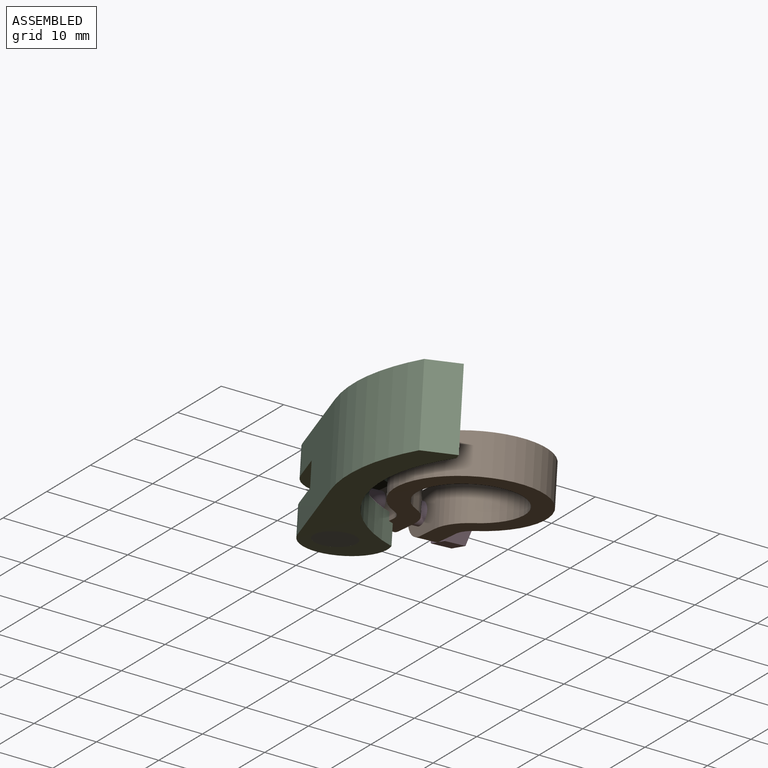
[diagram: assembled view]
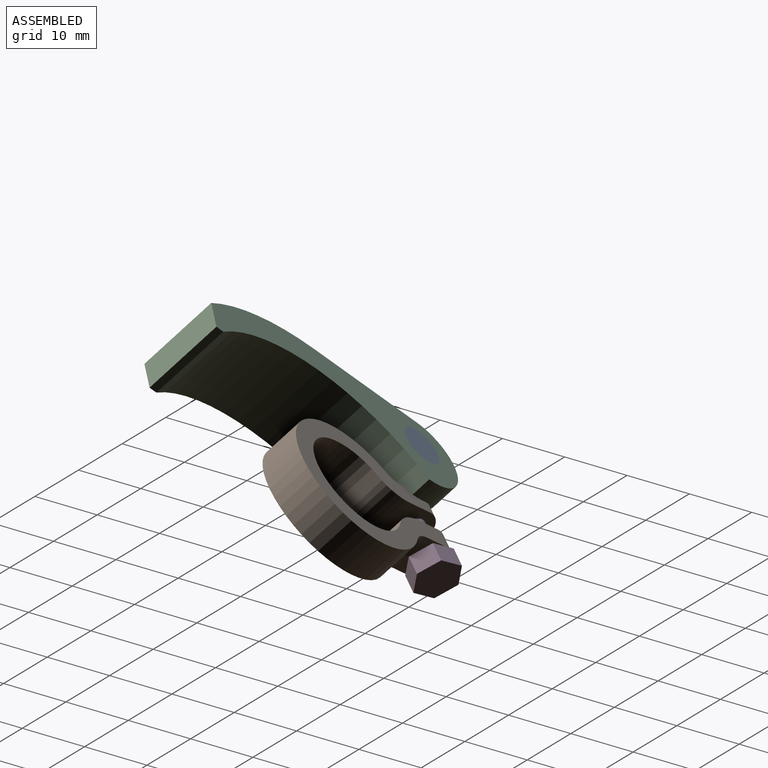
[diagram: assembled view, second angle]
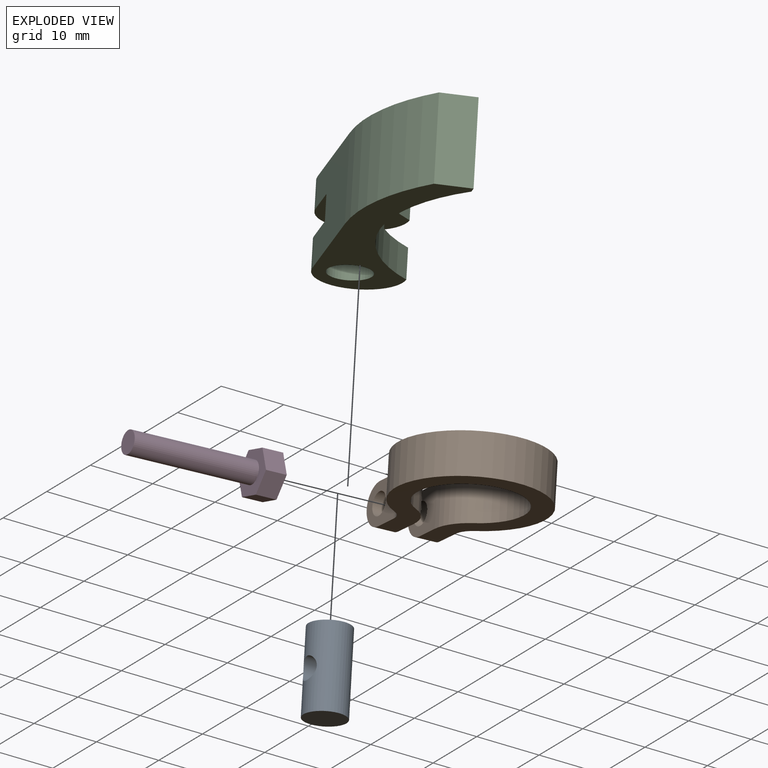
[diagram: exploded view]
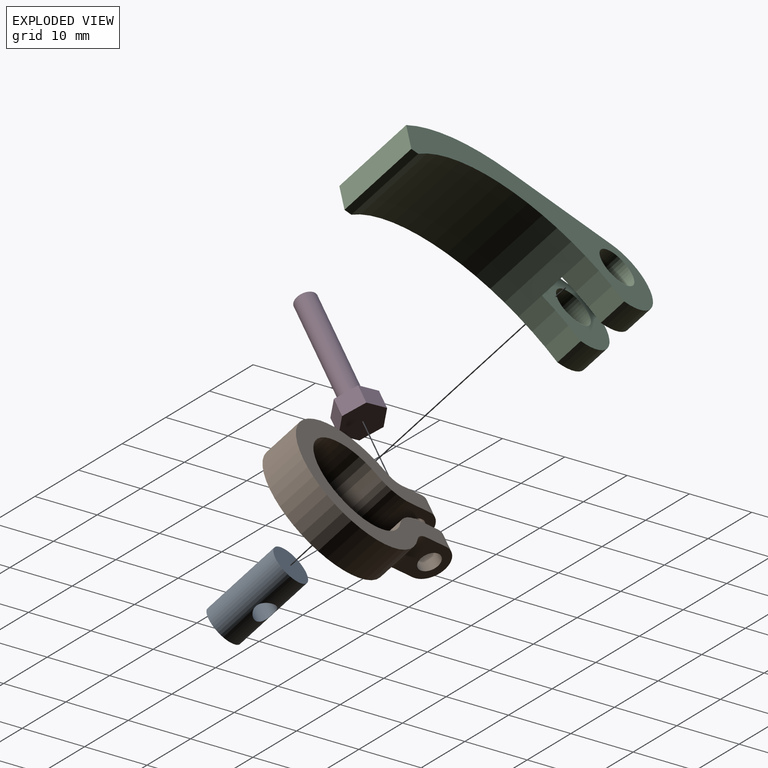
[diagram: exploded view, second angle]
ASSEMBLY  parts=4 mates=5
PART A: 4 faces, bbox 6.4x6.4x12.7 mm
  f0: cylinder r=3.17mm len=12.7mm, axis (0,0,-1), area 233.8mm2, adj f1,f2,f3
  f1: plane 6.35x6.35mm, normal (0,0,1), area 31.7mm2, adj f0
  f2: plane 6.35x6.35mm, normal (0,0,-1), area 31.7mm2, adj f0
  f3: cylinder r=1.73mm len=6.35mm, axis (0,-1,0), area 63.5mm2, adj f0
PART B: 16 faces, bbox 22.2x30.2x6.4 mm
  f0: plane 7.17x6.35mm, normal (-1,0,0), area 31.8mm2, adj f3,f10,f11,f12,f13
  f1: plane 7.17x6.35mm, normal (-1,0,0), area 31.8mm2, adj f7,f10,f11,f14,f15
  f2: plane 7.17x6.35mm, normal (1,0,0), area 31.8mm2, adj f9,f10,f11,f12,f13
  f3: cylinder r=3.17mm len=6.35mm, axis (0,0,-1), area 19.8mm2, adj f0,f4,f10,f11
  f4: cylinder r=11.11mm len=22.23mm, axis (0,0,-1), area 360.2mm2, adj f3,f5,f10,f11
  f5: cylinder r=3.17mm len=6.35mm, axis (0,0,-1), area 19.8mm2, adj f4,f6,f10,f11
  f6: plane 7.17x6.35mm, normal (1,0,0), area 31.8mm2, adj f5,f10,f11,f14,f15
  f7: cylinder r=6.35mm len=6.35mm, axis (0,0,-1), area 39.6mm2, adj f1,f8,f10,f11
  f8: cylinder r=7.94mm len=15.88mm, axis (0,0,-1), area 257.3mm2, adj f7,f9,f10,f11
  f9: cylinder r=6.35mm len=6.35mm, axis (0,0,-1), area 39.6mm2, adj f2,f8,f10,f11
  f10: plane 26.99x22.23mm, normal (0,0,1), area 209.4mm2, adj f0,f1,f2,f3,f4,f5,f6,f7
  f11: plane 26.99x22.23mm, normal (0,0,-1), area 209.4mm2, adj f0,f1,f2,f3,f4,f5,f6,f7
  f12: cylinder r=1.73mm len=3.45mm, axis (1,0,0), area 34.5mm2, adj f0,f2
  f13: cylinder r=3.17mm len=6.35mm, axis (1,0,0), area 31.7mm2, adj f0,f2,f10,f11
  f14: cylinder r=1.73mm len=3.45mm, axis (1,0,0), area 34.5mm2, adj f1,f6
  f15: cylinder r=3.17mm len=6.35mm, axis (1,0,0), area 31.7mm2, adj f1,f6,f10,f11
PART C: 14 faces, bbox 12.7x12.7x45.7 mm
  f0: plane 19.05x12.7mm, normal (-1,0,0), area 217.7mm2, adj f3,f4,f5,f8,f10,f11,f12,f13
  f1: cylinder r=26.94mm len=38.1mm, axis (0,-1,0), area 507.2mm2, adj f3,f4,f5,f6,f10,f11,f12,f13
  f2: cylinder r=3.17mm len=6.35mm, axis (0,-1,0), area 88.7mm2, adj f5,f12
  f3: cylinder r=6.35mm len=12.7mm, axis (0,-1,0), area 88.7mm2, adj f0,f1,f5,f12
  f4: plane 45.72x12.7mm, normal (0,1,0), area 277.3mm2, adj f0,f1,f6,f7,f8,f9,f10
  f5: plane 45.72x12.7mm, normal (0,-1,0), area 277.3mm2, adj f0,f1,f2,f3,f6,f7,f8
  f6: plane 12.7x1.27mm, normal (1,0,0), area 16.1mm2, adj f1,f4,f5,f7
  f7: plane 12.7x5.35mm, normal (0,0,1), area 67.9mm2, adj f4,f5,f6,f8
  f8: cylinder r=31.75mm len=20.32mm, axis (0,-1,0), area 280mm2, adj f0,f4,f5,f7
  f9: cylinder r=3.17mm len=6.35mm, axis (0,-1,0), area 88.7mm2, adj f4,f13
  f10: cylinder r=6.35mm len=12.7mm, axis (0,-1,0), area 88.7mm2, adj f0,f1,f4,f13
  f11: plane 7.99x3.81mm, normal (0,0,-1), area 30.4mm2, adj f0,f1,f12,f13
  f12: plane 12.7x12.7mm, normal (0,1,0), area 95.8mm2, adj f0,f1,f2,f3,f11
  f13: plane 12.7x12.7mm, normal (0,-1,0), area 95.8mm2, adj f0,f1,f9,f10,f11
PART D: 10 faces, bbox 7.2x6.9x22.2 mm
  f0: cylinder r=1.73mm len=19.05mm, axis (0,0,-1), area 206.7mm2, adj f1,f9
  f1: plane 3.45x3.45mm, normal (0,0,1), area 9.4mm2, adj f0
  f2: plane 3.61x3.18mm, normal (0.17,0.99,0), area 11.6mm2, adj f3,f7,f8,f9
  f3: plane 3.44x3.18mm, normal (0.94,0.35,0), area 11.6mm2, adj f2,f4,f8,f9
  f4: plane 3.18x2.82mm, normal (0.77,-0.64,0), area 11.6mm2, adj f3,f5,f8,f9
  f5: plane 3.61x3.18mm, normal (-0.17,-0.99,0), area 11.6mm2, adj f4,f6,f8,f9
  f6: plane 3.44x3.18mm, normal (-0.94,-0.35,0), area 11.6mm2, adj f5,f7,f8,f9
  f7: plane 3.18x2.82mm, normal (-0.77,0.64,0), area 11.6mm2, adj f2,f6,f8,f9
  f8: plane 7.23x6.88mm, normal (0,0,-1), area 34.9mm2, adj f2,f3,f4,f5,f6,f7
  f9: plane 7.23x6.88mm, normal (0,0,1), area 25.5mm2, adj f0,f2,f3,f4,f5,f6,f7
PLACE A rot(axis=(-0.64,-0.6,-0.48),50.4deg) t=(-34.36,-7.65,16.7)mm
PLACE B rot(axis=(-0.6,0.02,0.8),76.8deg) t=(-17.37,-0.84,23.81)mm
PLACE C rot(axis=(0.67,0.45,0.58),60.4deg) t=(-39.44,-0.14,16.8)mm
PLACE D rot(axis=(0.81,-0.59,0.07),67.4deg) t=(-28.55,8.35,15.11)mm
MATE cylindrical D.f0 <-> B.f12  axis (0.51,0.77,-0.39) through (-38.22,-6.31,22.5)mm
MATE cylindrical C.f2 <-> A.f0  axis (0.35,-0.6,-0.72) through (-34.36,-7.65,16.7)mm
MATE parallel C.f4 <-> B.f8  axis (-0.35,0.6,0.72) through (-30.27,-6.93,35.75)mm
MATE planar D.f0 <-> B.f12  axis (-0.51,-0.77,0.39) through (-38.22,-6.31,22.5)mm
MATE planar C.f5 <-> A.f0  axis (0.35,-0.6,-0.72) through (-25.78,-14.51,26.6)mm
